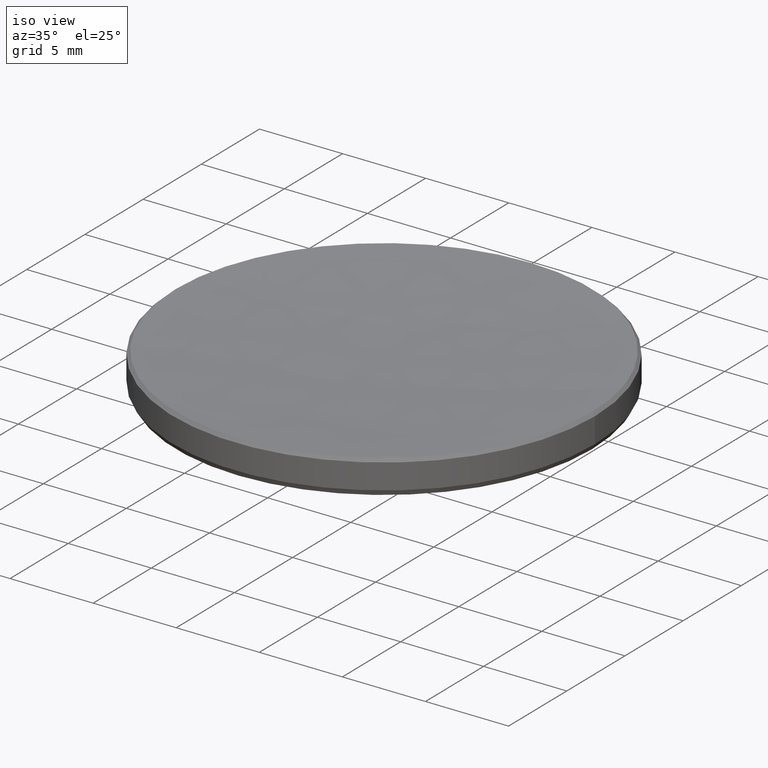
[diagram: clean part render]
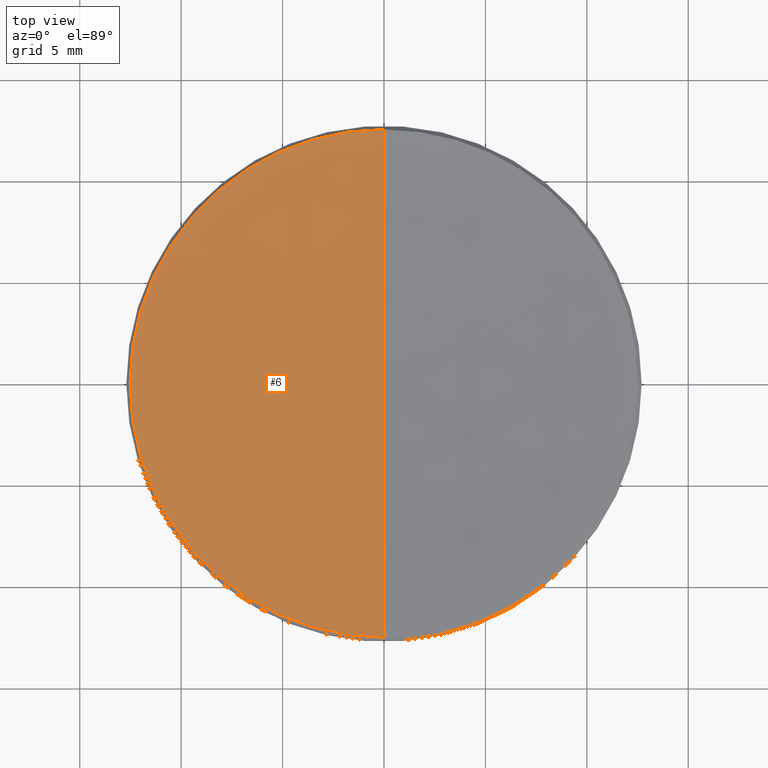
[diagram: tour spotlight — one face highlighted and labeled with its STEP entity id]
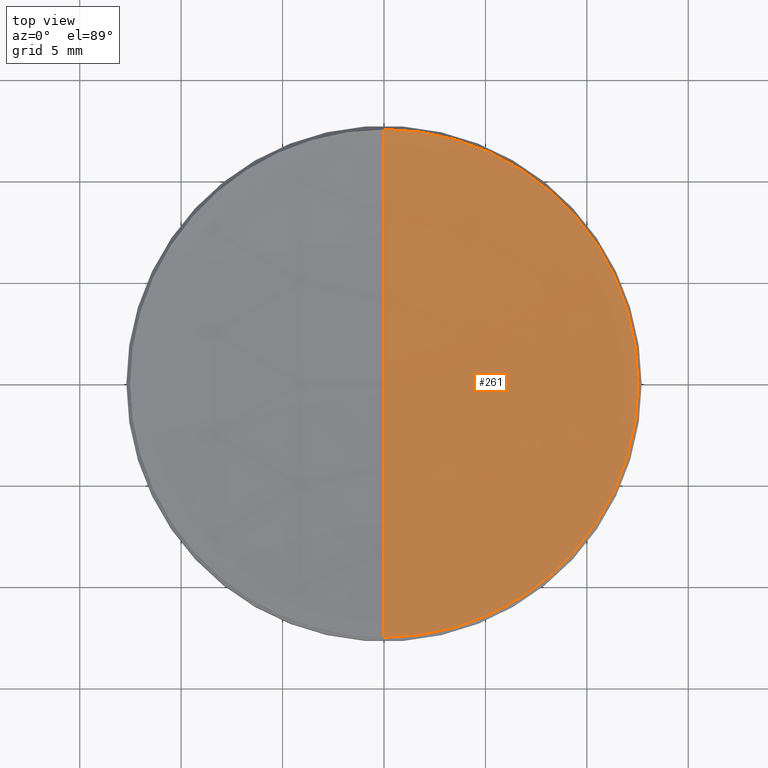
[diagram: tour spotlight — one face highlighted and labeled with its STEP entity id]
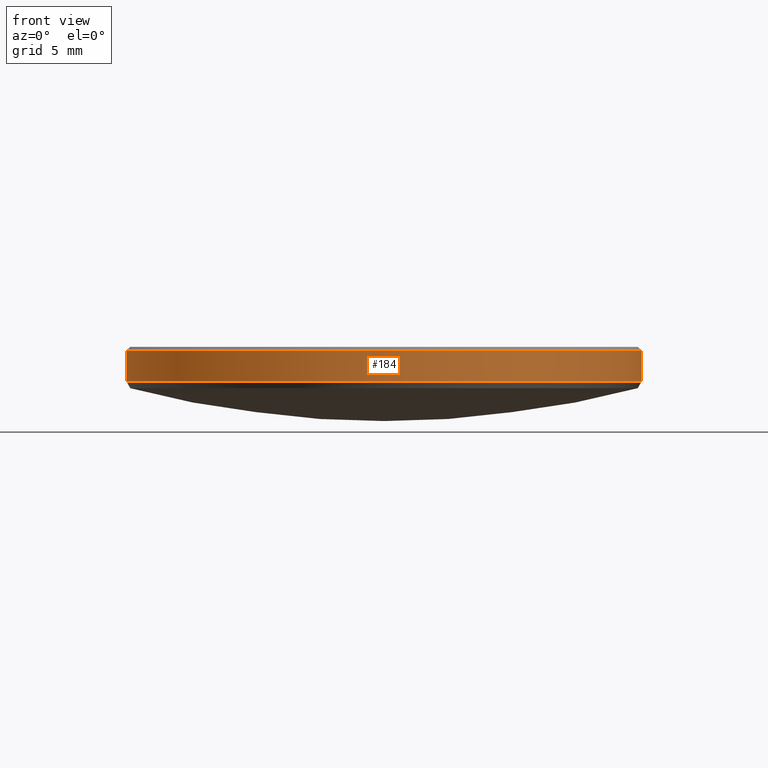
[diagram: tour spotlight — one face highlighted and labeled with its STEP entity id]
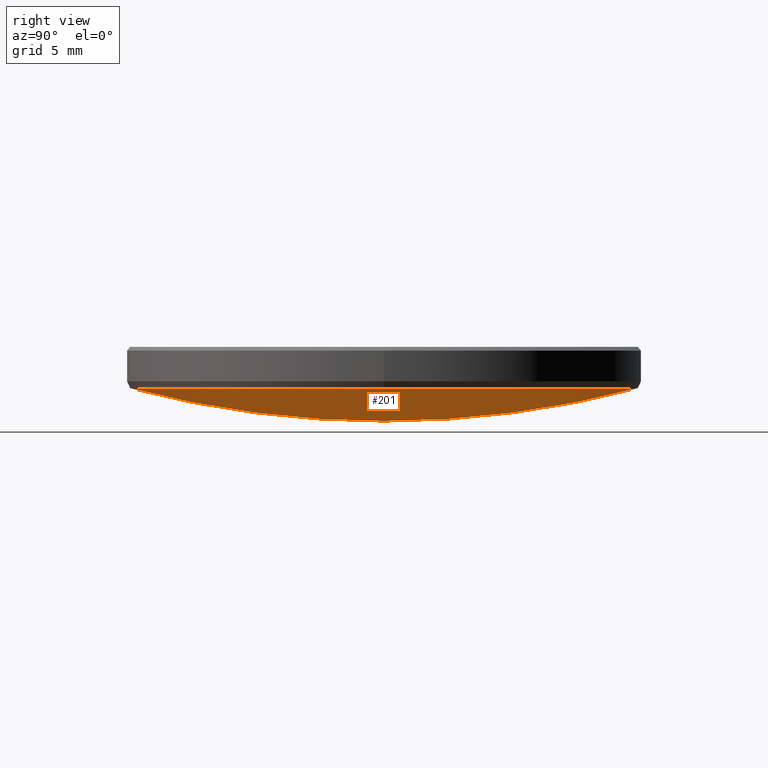
[diagram: tour spotlight — one face highlighted and labeled with its STEP entity id]
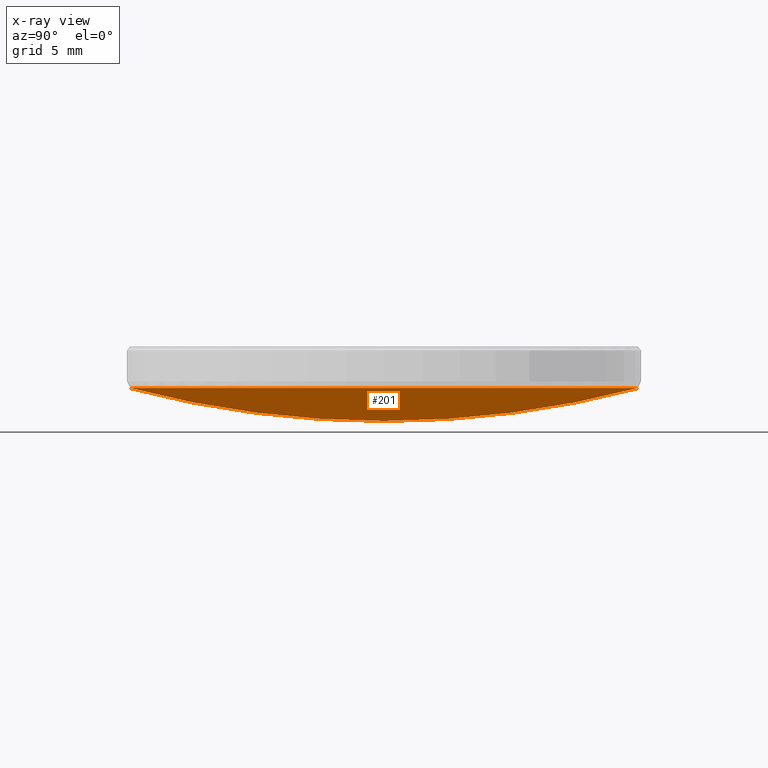
[diagram: x-ray of the same camera — body ghosted, this tour face saturated]
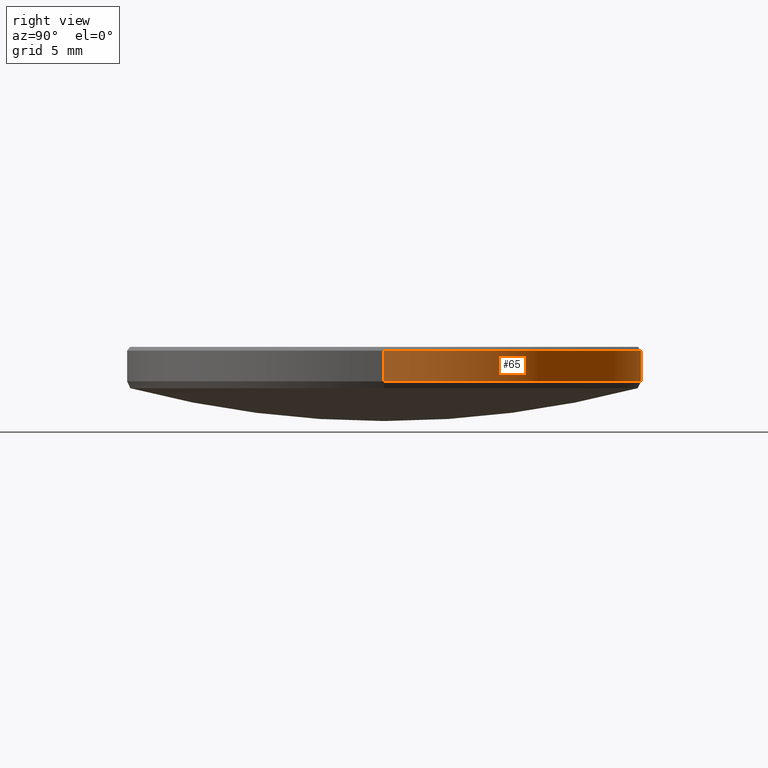
[diagram: tour spotlight — one face highlighted and labeled with its STEP entity id]
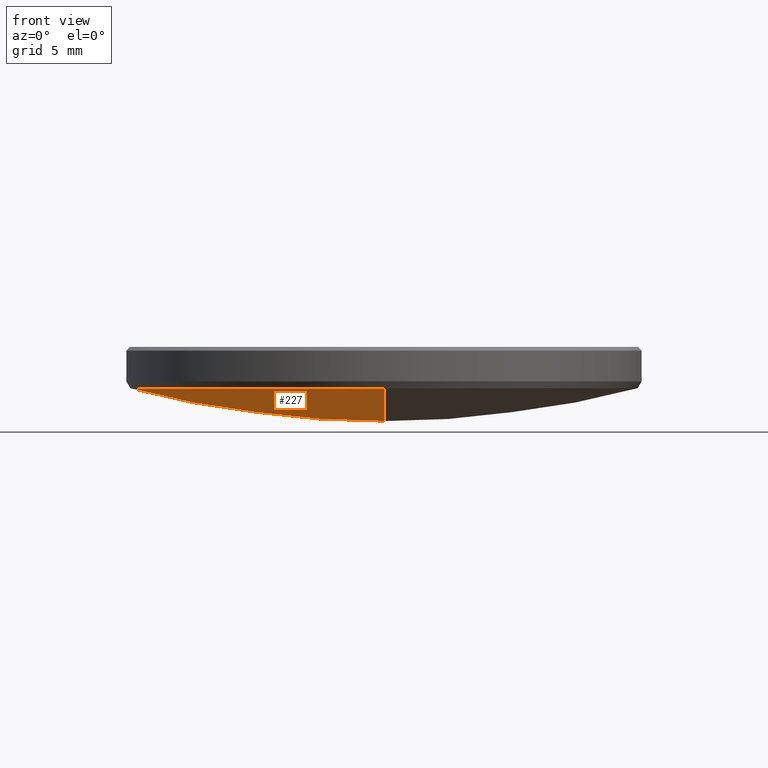
[diagram: tour spotlight — one face highlighted and labeled with its STEP entity id]
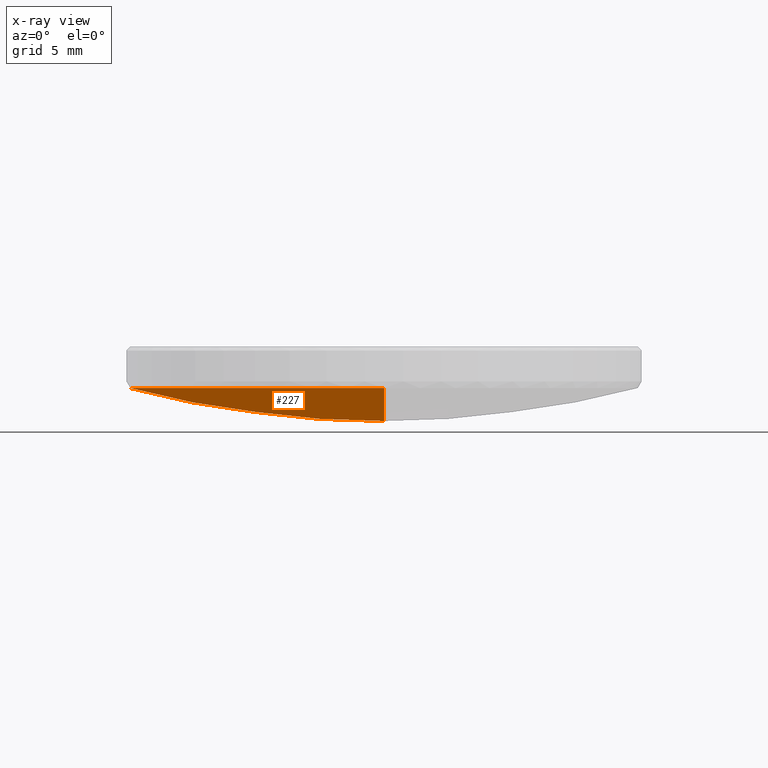
[diagram: x-ray of the same camera — body ghosted, this tour face saturated]
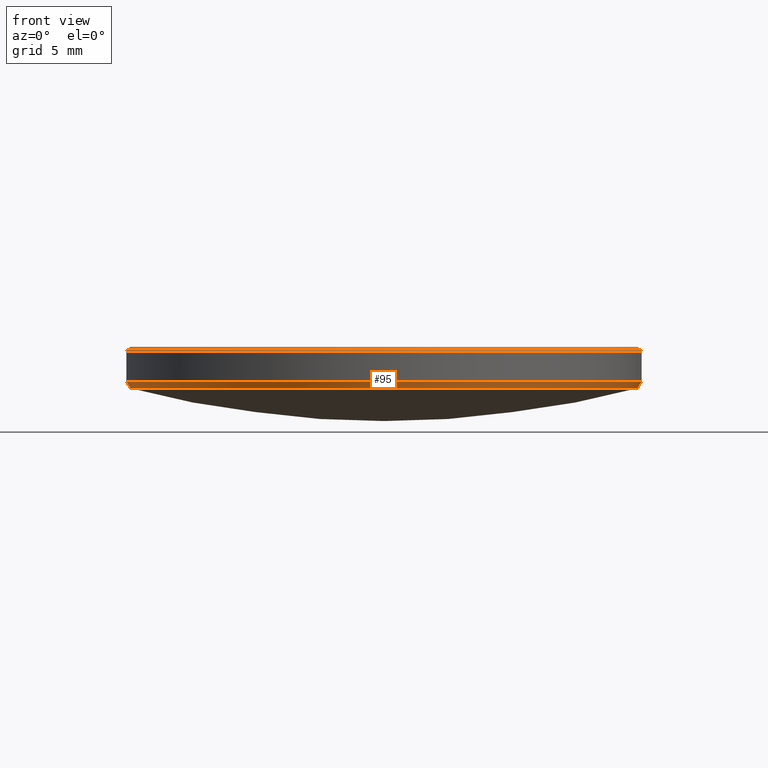
[diagram: tour spotlight — one face highlighted and labeled with its STEP entity id]
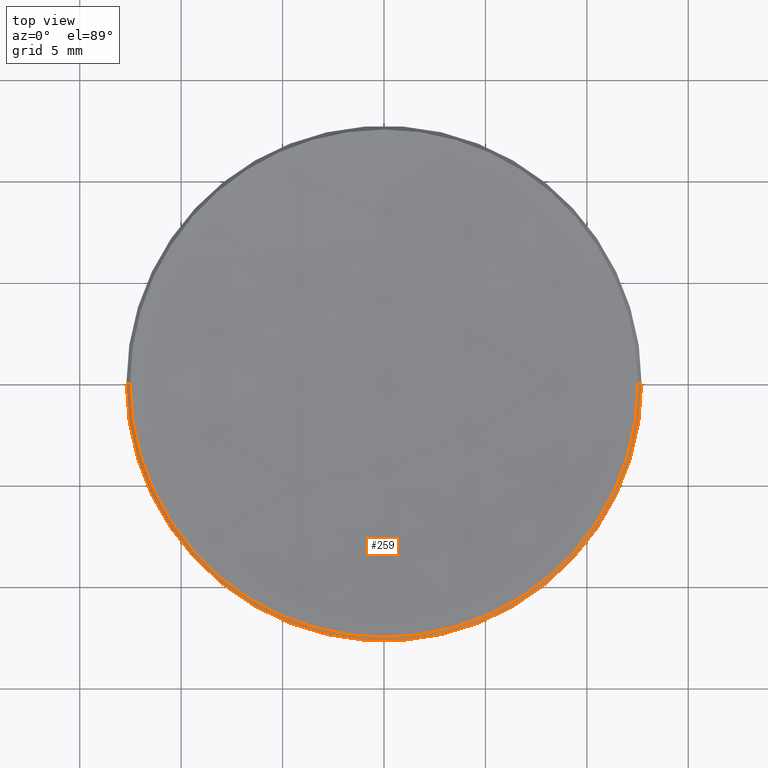
[diagram: tour spotlight — one face highlighted and labeled with its STEP entity id]
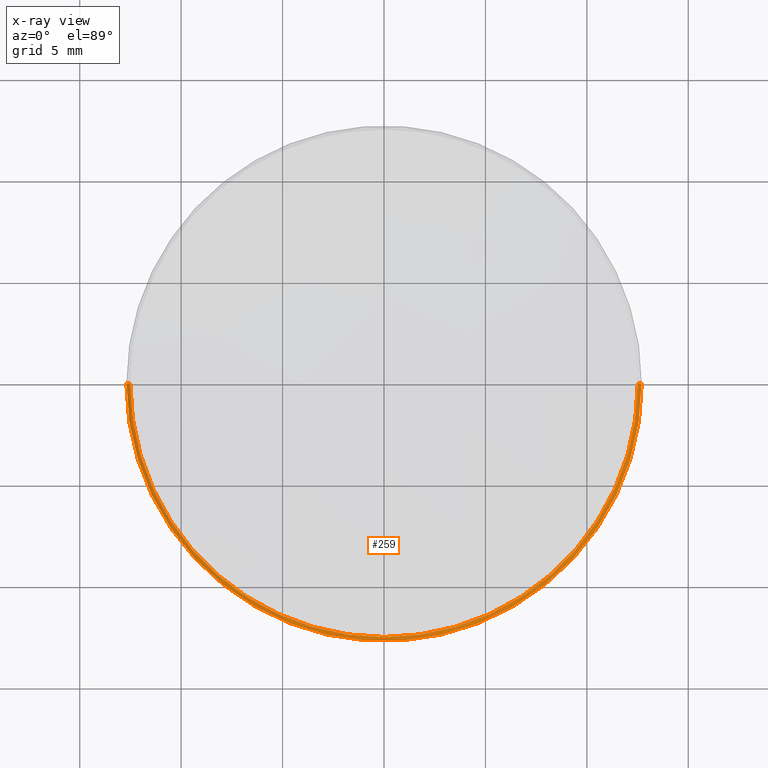
[diagram: x-ray of the same camera — body ghosted, this tour face saturated]
A machine part: a face-by-face anatomy tour. The part has 10 B-rep faces; the first image is the clean iso view, then the 8 largest visible faces are spotlighted one at a time (largest first), each with its STEP entity span.

Face 1 — top view, entity #6. In plain terms, the highlighted spherical surface has radius 131.56 mm.
Definition (entity closure, byte-faithful):
#6 = ADVANCED_FACE ( 'NONE', ( #218 ), #292, .F. ) ;
#13 = ORIENTED_EDGE ( 'NONE', *, *, #187, .T. ) ;
#15 = CIRCLE ( 'NONE', #296, 131.5600000000000023 ) ;
#16 = DIRECTION ( 'NONE',  ( -1.000000000000000000, 0.000000000000000000, 0.000000000000000000 ) ) ;
#29 = AXIS2_PLACEMENT_3D ( 'NONE', #53, #76, #202 ) ;
#32 = EDGE_CURVE ( 'NONE', #213, #191, #15, .T. ) ;
#42 = VERTEX_POINT ( 'NONE', #90 ) ;
#46 = ORIENTED_EDGE ( 'NONE', *, *, #143, .T. ) ;
#48 = CARTESIAN_POINT ( 'NONE',  ( -1.532959650738299683E-15, -12.51756548749897568, 5.982434512500911516 ) ) ;
#53 = CARTESIAN_POINT ( 'NONE',  ( 0.000000000000000000, 0.000000000000000000, 5.982434512500911516 ) ) ;
#56 = CIRCLE ( 'NONE', #330, 12.51756548749907694 ) ;
#69 = CARTESIAN_POINT ( 'NONE',  ( 0.000000000000000000, 0.000000000000000000, 136.9455749538715850 ) ) ;
#76 = DIRECTION ( 'NONE',  ( -0.000000000000000000, -0.000000000000000000, 1.000000000000000000 ) ) ;
#84 = CARTESIAN_POINT ( 'NONE',  ( -12.51756548749907694, 0.000000000000000000, 5.982434512500911516 ) ) ;
#90 = CARTESIAN_POINT ( 'NONE',  ( 0.000000000000000000, 12.51756548749897568, 5.982434512500911516 ) ) ;
#94 = EDGE_LOOP ( 'NONE', ( #289, #13, #46, #182 ) ) ;
#100 = DIRECTION ( 'NONE',  ( 1.000000000000000000, 0.000000000000000000, 0.000000000000000000 ) ) ;
#113 = DIRECTION ( 'NONE',  ( -1.000000000000000000, 1.224646799147353207E-16, 0.000000000000000000 ) ) ;
#143 = EDGE_CURVE ( 'NONE', #42, #319, #285, .T. ) ;
#146 = CARTESIAN_POINT ( 'NONE',  ( 0.000000000000000000, 8.055726644791288963E-15, 5.385574953871569370 ) ) ;
#165 = DIRECTION ( 'NONE',  ( 0.000000000000000000, 1.000000000000000000, 0.000000000000000000 ) ) ;
#168 = DIRECTION ( 'NONE',  ( -1.224646799147353207E-16, -1.000000000000000000, 0.000000000000000000 ) ) ;
#182 = ORIENTED_EDGE ( 'NONE', *, *, #243, .T. ) ;
#187 = EDGE_CURVE ( 'NONE', #213, #42, #232, .T. ) ;
#191 = VERTEX_POINT ( 'NONE', #48 ) ;
#202 = DIRECTION ( 'NONE',  ( 1.000000000000000000, 0.000000000000000000, 0.000000000000000000 ) ) ;
#204 = DIRECTION ( 'NONE',  ( -0.000000000000000000, -0.000000000000000000, 1.000000000000000000 ) ) ;
#213 = VERTEX_POINT ( 'NONE', #146 ) ;
#215 = AXIS2_PLACEMENT_3D ( 'NONE', #69, #16, #165 ) ;
#218 = FACE_OUTER_BOUND ( 'NONE', #94, .T. ) ;
#228 = CARTESIAN_POINT ( 'NONE',  ( 0.000000000000000000, 0.000000000000000000, 5.982434512500911516 ) ) ;
#232 = CIRCLE ( 'NONE', #313, 131.5600000000000023 ) ;
#243 = EDGE_CURVE ( 'NONE', #319, #191, #56, .T. ) ;
#253 = DIRECTION ( 'NONE',  ( 1.000000000000000000, 0.000000000000000000, 0.000000000000000000 ) ) ;
#277 = CARTESIAN_POINT ( 'NONE',  ( 0.000000000000000000, 0.000000000000000000, 136.9455749538715850 ) ) ;
#284 = DIRECTION ( 'NONE',  ( 0.000000000000000000, 0.000000000000000000, -1.000000000000000000 ) ) ;
#285 = CIRCLE ( 'NONE', #29, 12.51756548749907694 ) ;
#289 = ORIENTED_EDGE ( 'NONE', *, *, #32, .F. ) ;
#292 = SPHERICAL_SURFACE ( 'NONE', #215, 131.5600000000000023 ) ;
#296 = AXIS2_PLACEMENT_3D ( 'NONE', #322, #113, #168 ) ;
#313 = AXIS2_PLACEMENT_3D ( 'NONE', #277, #100, #284 ) ;
#319 = VERTEX_POINT ( 'NONE', #84 ) ;
#322 = CARTESIAN_POINT ( 'NONE',  ( 0.000000000000000000, 0.000000000000000000, 136.9455749538715850 ) ) ;
#330 = AXIS2_PLACEMENT_3D ( 'NONE', #228, #204, #253 ) ;

Face 2 — top view, entity #261. In plain terms, the highlighted spherical surface has radius 131.56 mm.
Definition (entity closure, byte-faithful):
#15 = CIRCLE ( 'NONE', #296, 131.5600000000000023 ) ;
#22 = AXIS2_PLACEMENT_3D ( 'NONE', #199, #144, #170 ) ;
#32 = EDGE_CURVE ( 'NONE', #213, #191, #15, .T. ) ;
#36 = ORIENTED_EDGE ( 'NONE', *, *, #112, .T. ) ;
#42 = VERTEX_POINT ( 'NONE', #90 ) ;
#45 = CIRCLE ( 'NONE', #134, 12.51756548749907694 ) ;
#48 = CARTESIAN_POINT ( 'NONE',  ( -1.532959650738299683E-15, -12.51756548749897568, 5.982434512500911516 ) ) ;
#52 = FACE_OUTER_BOUND ( 'NONE', #308, .T. ) ;
#71 = CIRCLE ( 'NONE', #22, 12.51756548749907694 ) ;
#80 = CARTESIAN_POINT ( 'NONE',  ( 0.000000000000000000, 0.000000000000000000, 5.982434512500911516 ) ) ;
#90 = CARTESIAN_POINT ( 'NONE',  ( 0.000000000000000000, 12.51756548749897568, 5.982434512500911516 ) ) ;
#100 = DIRECTION ( 'NONE',  ( 1.000000000000000000, 0.000000000000000000, 0.000000000000000000 ) ) ;
#101 = ORIENTED_EDGE ( 'NONE', *, *, #32, .T. ) ;
#104 = DIRECTION ( 'NONE',  ( 0.000000000000000000, 1.000000000000000000, 0.000000000000000000 ) ) ;
#111 = EDGE_CURVE ( 'NONE', #191, #214, #71, .T. ) ;
#112 = EDGE_CURVE ( 'NONE', #214, #42, #45, .T. ) ;
#113 = DIRECTION ( 'NONE',  ( -1.000000000000000000, 1.224646799147353207E-16, 0.000000000000000000 ) ) ;
#134 = AXIS2_PLACEMENT_3D ( 'NONE', #80, #328, #303 ) ;
#144 = DIRECTION ( 'NONE',  ( -0.000000000000000000, -0.000000000000000000, 1.000000000000000000 ) ) ;
#146 = CARTESIAN_POINT ( 'NONE',  ( 0.000000000000000000, 8.055726644791288963E-15, 5.385574953871569370 ) ) ;
#147 = SPHERICAL_SURFACE ( 'NONE', #288, 131.5600000000000023 ) ;
#168 = DIRECTION ( 'NONE',  ( -1.224646799147353207E-16, -1.000000000000000000, 0.000000000000000000 ) ) ;
#170 = DIRECTION ( 'NONE',  ( 1.000000000000000000, 0.000000000000000000, 0.000000000000000000 ) ) ;
#187 = EDGE_CURVE ( 'NONE', #213, #42, #232, .T. ) ;
#191 = VERTEX_POINT ( 'NONE', #48 ) ;
#199 = CARTESIAN_POINT ( 'NONE',  ( 0.000000000000000000, 0.000000000000000000, 5.982434512500911516 ) ) ;
#213 = VERTEX_POINT ( 'NONE', #146 ) ;
#214 = VERTEX_POINT ( 'NONE', #327 ) ;
#220 = ORIENTED_EDGE ( 'NONE', *, *, #187, .F. ) ;
#231 = DIRECTION ( 'NONE',  ( -1.000000000000000000, 0.000000000000000000, 0.000000000000000000 ) ) ;
#232 = CIRCLE ( 'NONE', #313, 131.5600000000000023 ) ;
#254 = CARTESIAN_POINT ( 'NONE',  ( 0.000000000000000000, 0.000000000000000000, 136.9455749538715850 ) ) ;
#261 = ADVANCED_FACE ( 'NONE', ( #52 ), #147, .F. ) ;
#277 = CARTESIAN_POINT ( 'NONE',  ( 0.000000000000000000, 0.000000000000000000, 136.9455749538715850 ) ) ;
#284 = DIRECTION ( 'NONE',  ( 0.000000000000000000, 0.000000000000000000, -1.000000000000000000 ) ) ;
#288 = AXIS2_PLACEMENT_3D ( 'NONE', #254, #231, #104 ) ;
#296 = AXIS2_PLACEMENT_3D ( 'NONE', #322, #113, #168 ) ;
#303 = DIRECTION ( 'NONE',  ( 1.000000000000000000, 0.000000000000000000, 0.000000000000000000 ) ) ;
#308 = EDGE_LOOP ( 'NONE', ( #220, #101, #310, #36 ) ) ;
#310 = ORIENTED_EDGE ( 'NONE', *, *, #111, .T. ) ;
#313 = AXIS2_PLACEMENT_3D ( 'NONE', #277, #100, #284 ) ;
#322 = CARTESIAN_POINT ( 'NONE',  ( 0.000000000000000000, 0.000000000000000000, 136.9455749538715850 ) ) ;
#327 = CARTESIAN_POINT ( 'NONE',  ( 12.51756548749907694, 1.544130542827725172E-15, 5.982434512500911516 ) ) ;
#328 = DIRECTION ( 'NONE',  ( -0.000000000000000000, -0.000000000000000000, 1.000000000000000000 ) ) ;

Face 3 — front view, entity #184. In plain terms, the highlighted cylindrical surface (partial cylindrical patch) has radius 12.7 mm, axis along (-0, -0, -1).
Definition (entity closure, byte-faithful):
#9 = VERTEX_POINT ( 'NONE', #290 ) ;
#14 = ORIENTED_EDGE ( 'NONE', *, *, #131, .T. ) ;
#24 = DIRECTION ( 'NONE',  ( -0.000000000000000000, -0.000000000000000000, -1.000000000000000000 ) ) ;
#27 = DIRECTION ( 'NONE',  ( -0.000000000000000000, -0.000000000000000000, -1.000000000000000000 ) ) ;
#39 = CARTESIAN_POINT ( 'NONE',  ( 12.69999999999999929, 1.555301434917138433E-15, 4.282866881517001900 ) ) ;
#64 = VERTEX_POINT ( 'NONE', #39 ) ;
#74 = EDGE_CURVE ( 'NONE', #198, #64, #216, .T. ) ;
#78 = CYLINDRICAL_SURFACE ( 'NONE', #169, 12.69999999999999929 ) ;
#82 = ORIENTED_EDGE ( 'NONE', *, *, #245, .T. ) ;
#91 = VERTEX_POINT ( 'NONE', #329 ) ;
#99 = DIRECTION ( 'NONE',  ( 1.000000000000000000, 0.000000000000000000, 0.000000000000000000 ) ) ;
#103 = DIRECTION ( 'NONE',  ( -0.000000000000000000, -0.000000000000000000, 1.000000000000000000 ) ) ;
#121 = LINE ( 'NONE', #233, #179 ) ;
#122 = CARTESIAN_POINT ( 'NONE',  ( 0.000000000000000000, 0.000000000000000000, 4.282866881517001900 ) ) ;
#127 = CARTESIAN_POINT ( 'NONE',  ( -12.69999999999999929, 0.000000000000000000, 4.282866881517001900 ) ) ;
#131 = EDGE_CURVE ( 'NONE', #91, #9, #263, .T. ) ;
#169 = AXIS2_PLACEMENT_3D ( 'NONE', #225, #27, #299 ) ;
#177 = LINE ( 'NONE', #283, #211 ) ;
#179 = VECTOR ( 'NONE', #24, 1000.000000000000000 ) ;
#184 = ADVANCED_FACE ( 'NONE', ( #324 ), #78, .T. ) ;
#186 = ORIENTED_EDGE ( 'NONE', *, *, #271, .F. ) ;
#196 = CARTESIAN_POINT ( 'NONE',  ( 0.000000000000000000, 0.000000000000000000, 5.799999999999999822 ) ) ;
#198 = VERTEX_POINT ( 'NONE', #127 ) ;
#211 = VECTOR ( 'NONE', #331, 1000.000000000000000 ) ;
#216 = CIRCLE ( 'NONE', #262, 12.69999999999999929 ) ;
#225 = CARTESIAN_POINT ( 'NONE',  ( 0.000000000000000000, 0.000000000000000000, 10.00000000000000000 ) ) ;
#233 = CARTESIAN_POINT ( 'NONE',  ( -12.69999999999999929, 0.000000000000000000, 10.00000000000000000 ) ) ;
#237 = EDGE_LOOP ( 'NONE', ( #186, #14, #82, #241 ) ) ;
#241 = ORIENTED_EDGE ( 'NONE', *, *, #74, .T. ) ;
#245 = EDGE_CURVE ( 'NONE', #9, #198, #121, .T. ) ;
#257 = AXIS2_PLACEMENT_3D ( 'NONE', #196, #280, #99 ) ;
#262 = AXIS2_PLACEMENT_3D ( 'NONE', #122, #103, #276 ) ;
#263 = CIRCLE ( 'NONE', #257, 12.69999999999999929 ) ;
#271 = EDGE_CURVE ( 'NONE', #91, #64, #177, .T. ) ;
#276 = DIRECTION ( 'NONE',  ( -1.000000000000000000, 0.000000000000000000, 0.000000000000000000 ) ) ;
#280 = DIRECTION ( 'NONE',  ( 0.000000000000000000, 0.000000000000000000, -1.000000000000000000 ) ) ;
#283 = CARTESIAN_POINT ( 'NONE',  ( 12.69999999999999929, 1.555301434917138433E-15, 10.00000000000000000 ) ) ;
#290 = CARTESIAN_POINT ( 'NONE',  ( -12.69999999999999929, 0.000000000000000000, 5.799999999999999822 ) ) ;
#299 = DIRECTION ( 'NONE',  ( -1.000000000000000000, 0.000000000000000000, 0.000000000000000000 ) ) ;
#324 = FACE_OUTER_BOUND ( 'NONE', #237, .T. ) ;
#329 = CARTESIAN_POINT ( 'NONE',  ( 12.69999999999999929, 1.555301434917138433E-15, 5.799999999999999822 ) ) ;
#331 = DIRECTION ( 'NONE',  ( -0.000000000000000000, -0.000000000000000000, -1.000000000000000000 ) ) ;

Face 4 — right view, entity #201. An x-ray twin of the same camera follows (body ghosted, this face saturated) — the face is partly hidden behind the body. In plain terms, the highlighted spherical surface has radius 49.06 mm.
Definition (entity closure, byte-faithful):
#1 = EDGE_CURVE ( 'NONE', #115, #258, #35, .T. ) ;
#19 = DIRECTION ( 'NONE',  ( 0.000000000000000000, 1.000000000000000000, 0.000000000000000000 ) ) ;
#35 = CIRCLE ( 'NONE', #133, 49.05999999999999517 ) ;
#40 = CARTESIAN_POINT ( 'NONE',  ( 0.000000000000000000, 0.000000000000000000, 51.38769460524535049 ) ) ;
#50 = SPHERICAL_SURFACE ( 'NONE', #207, 49.05999999999999517 ) ;
#54 = CARTESIAN_POINT ( 'NONE',  ( 0.000000000000000000, 0.000000000000000000, 3.948723936848863580 ) ) ;
#55 = DIRECTION ( 'NONE',  ( -1.000000000000000000, 0.000000000000000000, 0.000000000000000000 ) ) ;
#61 = EDGE_CURVE ( 'NONE', #264, #67, #188, .T. ) ;
#63 = ORIENTED_EDGE ( 'NONE', *, *, #286, .T. ) ;
#67 = VERTEX_POINT ( 'NONE', #221 ) ;
#72 = AXIS2_PLACEMENT_3D ( 'NONE', #54, #148, #256 ) ;
#115 = VERTEX_POINT ( 'NONE', #300 ) ;
#126 = CARTESIAN_POINT ( 'NONE',  ( -1.531678544107628650E-15, -12.50710445798775083, 3.948723936848860028 ) ) ;
#129 = EDGE_CURVE ( 'NONE', #115, #264, #325, .T. ) ;
#133 = AXIS2_PLACEMENT_3D ( 'NONE', #40, #246, #137 ) ;
#137 = DIRECTION ( 'NONE',  ( -1.224646799147353207E-16, -1.000000000000000000, 0.000000000000000000 ) ) ;
#139 = DIRECTION ( 'NONE',  ( 1.000000000000000000, 0.000000000000000000, 0.000000000000000000 ) ) ;
#148 = DIRECTION ( 'NONE',  ( 0.000000000000000000, 0.000000000000000000, -1.000000000000000000 ) ) ;
#167 = AXIS2_PLACEMENT_3D ( 'NONE', #294, #270, #139 ) ;
#173 = FACE_OUTER_BOUND ( 'NONE', #235, .T. ) ;
#174 = DIRECTION ( 'NONE',  ( 0.000000000000000000, 0.000000000000000000, -1.000000000000000000 ) ) ;
#188 = CIRCLE ( 'NONE', #167, 12.50710445798774728 ) ;
#193 = ORIENTED_EDGE ( 'NONE', *, *, #1, .F. ) ;
#197 = CARTESIAN_POINT ( 'NONE',  ( 0.000000000000000000, 0.000000000000000000, 51.38769460524535049 ) ) ;
#201 = ADVANCED_FACE ( 'NONE', ( #173 ), #50, .T. ) ;
#203 = AXIS2_PLACEMENT_3D ( 'NONE', #226, #224, #174 ) ;
#207 = AXIS2_PLACEMENT_3D ( 'NONE', #197, #55, #19 ) ;
#208 = ORIENTED_EDGE ( 'NONE', *, *, #129, .T. ) ;
#221 = CARTESIAN_POINT ( 'NONE',  ( 12.50710445798774728, 0.000000000000000000, 3.948723936848863580 ) ) ;
#224 = DIRECTION ( 'NONE',  ( 1.000000000000000000, -0.000000000000000000, 0.000000000000000000 ) ) ;
#226 = CARTESIAN_POINT ( 'NONE',  ( 0.000000000000000000, 0.000000000000000000, 51.38769460524535049 ) ) ;
#235 = EDGE_LOOP ( 'NONE', ( #193, #208, #323, #63 ) ) ;
#246 = DIRECTION ( 'NONE',  ( -1.000000000000000000, 1.224646799147353207E-16, 0.000000000000000000 ) ) ;
#256 = DIRECTION ( 'NONE',  ( 1.000000000000000000, 0.000000000000000000, 0.000000000000000000 ) ) ;
#258 = VERTEX_POINT ( 'NONE', #126 ) ;
#264 = VERTEX_POINT ( 'NONE', #307 ) ;
#270 = DIRECTION ( 'NONE',  ( 0.000000000000000000, 0.000000000000000000, -1.000000000000000000 ) ) ;
#286 = EDGE_CURVE ( 'NONE', #67, #258, #311, .T. ) ;
#294 = CARTESIAN_POINT ( 'NONE',  ( 0.000000000000000000, 0.000000000000000000, 3.948723936848863580 ) ) ;
#300 = CARTESIAN_POINT ( 'NONE',  ( 0.000000000000000000, 3.004058598308457002E-15, 2.327694605245358872 ) ) ;
#307 = CARTESIAN_POINT ( 'NONE',  ( 0.000000000000000000, 12.50710445798775083, 3.948723936848860028 ) ) ;
#311 = CIRCLE ( 'NONE', #72, 12.50710445798774728 ) ;
#323 = ORIENTED_EDGE ( 'NONE', *, *, #61, .T. ) ;
#325 = CIRCLE ( 'NONE', #203, 49.05999999999999517 ) ;

Face 5 — right view, entity #65. In plain terms, the highlighted cylindrical surface (partial cylindrical patch) has radius 12.7 mm, axis along (-0, -0, -1).
Definition (entity closure, byte-faithful):
#7 = ORIENTED_EDGE ( 'NONE', *, *, #234, .T. ) ;
#9 = VERTEX_POINT ( 'NONE', #290 ) ;
#17 = CARTESIAN_POINT ( 'NONE',  ( 0.000000000000000000, 0.000000000000000000, 10.00000000000000000 ) ) ;
#21 = DIRECTION ( 'NONE',  ( 1.000000000000000000, 0.000000000000000000, 0.000000000000000000 ) ) ;
#24 = DIRECTION ( 'NONE',  ( -0.000000000000000000, -0.000000000000000000, -1.000000000000000000 ) ) ;
#28 = CARTESIAN_POINT ( 'NONE',  ( 0.000000000000000000, 0.000000000000000000, 4.282866881517001900 ) ) ;
#39 = CARTESIAN_POINT ( 'NONE',  ( 12.69999999999999929, 1.555301434917138433E-15, 4.282866881517001900 ) ) ;
#62 = DIRECTION ( 'NONE',  ( -0.000000000000000000, -0.000000000000000000, -1.000000000000000000 ) ) ;
#64 = VERTEX_POINT ( 'NONE', #39 ) ;
#65 = ADVANCED_FACE ( 'NONE', ( #244 ), #185, .T. ) ;
#66 = ORIENTED_EDGE ( 'NONE', *, *, #245, .F. ) ;
#85 = AXIS2_PLACEMENT_3D ( 'NONE', #128, #142, #21 ) ;
#91 = VERTEX_POINT ( 'NONE', #329 ) ;
#97 = AXIS2_PLACEMENT_3D ( 'NONE', #28, #106, #206 ) ;
#106 = DIRECTION ( 'NONE',  ( -0.000000000000000000, -0.000000000000000000, 1.000000000000000000 ) ) ;
#118 = DIRECTION ( 'NONE',  ( -1.000000000000000000, 0.000000000000000000, 0.000000000000000000 ) ) ;
#121 = LINE ( 'NONE', #233, #179 ) ;
#123 = CIRCLE ( 'NONE', #85, 12.69999999999999929 ) ;
#127 = CARTESIAN_POINT ( 'NONE',  ( -12.69999999999999929, 0.000000000000000000, 4.282866881517001900 ) ) ;
#128 = CARTESIAN_POINT ( 'NONE',  ( 0.000000000000000000, 0.000000000000000000, 5.799999999999999822 ) ) ;
#140 = EDGE_LOOP ( 'NONE', ( #7, #157, #238, #66 ) ) ;
#142 = DIRECTION ( 'NONE',  ( 0.000000000000000000, 0.000000000000000000, -1.000000000000000000 ) ) ;
#154 = AXIS2_PLACEMENT_3D ( 'NONE', #17, #62, #118 ) ;
#157 = ORIENTED_EDGE ( 'NONE', *, *, #271, .T. ) ;
#177 = LINE ( 'NONE', #283, #211 ) ;
#179 = VECTOR ( 'NONE', #24, 1000.000000000000000 ) ;
#185 = CYLINDRICAL_SURFACE ( 'NONE', #154, 12.69999999999999929 ) ;
#198 = VERTEX_POINT ( 'NONE', #127 ) ;
#206 = DIRECTION ( 'NONE',  ( -1.000000000000000000, 0.000000000000000000, 0.000000000000000000 ) ) ;
#211 = VECTOR ( 'NONE', #331, 1000.000000000000000 ) ;
#233 = CARTESIAN_POINT ( 'NONE',  ( -12.69999999999999929, 0.000000000000000000, 10.00000000000000000 ) ) ;
#234 = EDGE_CURVE ( 'NONE', #9, #91, #123, .T. ) ;
#238 = ORIENTED_EDGE ( 'NONE', *, *, #301, .T. ) ;
#244 = FACE_OUTER_BOUND ( 'NONE', #140, .T. ) ;
#245 = EDGE_CURVE ( 'NONE', #9, #198, #121, .T. ) ;
#271 = EDGE_CURVE ( 'NONE', #91, #64, #177, .T. ) ;
#283 = CARTESIAN_POINT ( 'NONE',  ( 12.69999999999999929, 1.555301434917138433E-15, 10.00000000000000000 ) ) ;
#290 = CARTESIAN_POINT ( 'NONE',  ( -12.69999999999999929, 0.000000000000000000, 5.799999999999999822 ) ) ;
#301 = EDGE_CURVE ( 'NONE', #64, #198, #305, .T. ) ;
#305 = CIRCLE ( 'NONE', #97, 12.69999999999999929 ) ;
#329 = CARTESIAN_POINT ( 'NONE',  ( 12.69999999999999929, 1.555301434917138433E-15, 5.799999999999999822 ) ) ;
#331 = DIRECTION ( 'NONE',  ( -0.000000000000000000, -0.000000000000000000, -1.000000000000000000 ) ) ;

Face 6 — front view, entity #227. An x-ray twin of the same camera follows (body ghosted, this face saturated) — the face is partly hidden behind the body. In plain terms, the highlighted spherical surface has radius 49.06 mm.
Definition (entity closure, byte-faithful):
#1 = EDGE_CURVE ( 'NONE', #115, #258, #35, .T. ) ;
#8 = AXIS2_PLACEMENT_3D ( 'NONE', #248, #172, #20 ) ;
#20 = DIRECTION ( 'NONE',  ( 1.000000000000000000, 0.000000000000000000, 0.000000000000000000 ) ) ;
#35 = CIRCLE ( 'NONE', #133, 49.05999999999999517 ) ;
#40 = CARTESIAN_POINT ( 'NONE',  ( 0.000000000000000000, 0.000000000000000000, 51.38769460524535049 ) ) ;
#75 = DIRECTION ( 'NONE',  ( 1.000000000000000000, 0.000000000000000000, 0.000000000000000000 ) ) ;
#79 = AXIS2_PLACEMENT_3D ( 'NONE', #81, #222, #175 ) ;
#81 = CARTESIAN_POINT ( 'NONE',  ( 0.000000000000000000, 0.000000000000000000, 51.38769460524535049 ) ) ;
#89 = ORIENTED_EDGE ( 'NONE', *, *, #255, .T. ) ;
#92 = ORIENTED_EDGE ( 'NONE', *, *, #1, .T. ) ;
#105 = CIRCLE ( 'NONE', #279, 12.50710445798774728 ) ;
#115 = VERTEX_POINT ( 'NONE', #300 ) ;
#117 = CIRCLE ( 'NONE', #8, 12.50710445798774728 ) ;
#126 = CARTESIAN_POINT ( 'NONE',  ( -1.531678544107628650E-15, -12.50710445798775083, 3.948723936848860028 ) ) ;
#129 = EDGE_CURVE ( 'NONE', #115, #264, #325, .T. ) ;
#133 = AXIS2_PLACEMENT_3D ( 'NONE', #40, #246, #137 ) ;
#135 = ORIENTED_EDGE ( 'NONE', *, *, #129, .F. ) ;
#137 = DIRECTION ( 'NONE',  ( -1.224646799147353207E-16, -1.000000000000000000, 0.000000000000000000 ) ) ;
#138 = ORIENTED_EDGE ( 'NONE', *, *, #162, .T. ) ;
#162 = EDGE_CURVE ( 'NONE', #258, #183, #117, .T. ) ;
#172 = DIRECTION ( 'NONE',  ( 0.000000000000000000, 0.000000000000000000, -1.000000000000000000 ) ) ;
#174 = DIRECTION ( 'NONE',  ( 0.000000000000000000, 0.000000000000000000, -1.000000000000000000 ) ) ;
#175 = DIRECTION ( 'NONE',  ( 0.000000000000000000, 1.000000000000000000, 0.000000000000000000 ) ) ;
#178 = CARTESIAN_POINT ( 'NONE',  ( 0.000000000000000000, 0.000000000000000000, 3.948723936848863580 ) ) ;
#183 = VERTEX_POINT ( 'NONE', #249 ) ;
#195 = DIRECTION ( 'NONE',  ( 0.000000000000000000, 0.000000000000000000, -1.000000000000000000 ) ) ;
#200 = FACE_OUTER_BOUND ( 'NONE', #315, .T. ) ;
#203 = AXIS2_PLACEMENT_3D ( 'NONE', #226, #224, #174 ) ;
#222 = DIRECTION ( 'NONE',  ( -1.000000000000000000, 0.000000000000000000, 0.000000000000000000 ) ) ;
#224 = DIRECTION ( 'NONE',  ( 1.000000000000000000, -0.000000000000000000, 0.000000000000000000 ) ) ;
#226 = CARTESIAN_POINT ( 'NONE',  ( 0.000000000000000000, 0.000000000000000000, 51.38769460524535049 ) ) ;
#227 = ADVANCED_FACE ( 'NONE', ( #200 ), #309, .T. ) ;
#246 = DIRECTION ( 'NONE',  ( -1.000000000000000000, 1.224646799147353207E-16, 0.000000000000000000 ) ) ;
#248 = CARTESIAN_POINT ( 'NONE',  ( 0.000000000000000000, 0.000000000000000000, 3.948723936848863580 ) ) ;
#249 = CARTESIAN_POINT ( 'NONE',  ( -12.50710445798774728, 1.543489989512383738E-15, 3.948723936848863580 ) ) ;
#255 = EDGE_CURVE ( 'NONE', #183, #264, #105, .T. ) ;
#258 = VERTEX_POINT ( 'NONE', #126 ) ;
#264 = VERTEX_POINT ( 'NONE', #307 ) ;
#279 = AXIS2_PLACEMENT_3D ( 'NONE', #178, #195, #75 ) ;
#300 = CARTESIAN_POINT ( 'NONE',  ( 0.000000000000000000, 3.004058598308457002E-15, 2.327694605245358872 ) ) ;
#307 = CARTESIAN_POINT ( 'NONE',  ( 0.000000000000000000, 12.50710445798775083, 3.948723936848860028 ) ) ;
#309 = SPHERICAL_SURFACE ( 'NONE', #79, 49.05999999999999517 ) ;
#315 = EDGE_LOOP ( 'NONE', ( #135, #92, #138, #89 ) ) ;
#325 = CIRCLE ( 'NONE', #203, 49.05999999999999517 ) ;

Face 7 — front view, entity #95. In plain terms, the highlighted conical surface has half-angle 29.997 deg.
Definition (entity closure, byte-faithful):
#8 = AXIS2_PLACEMENT_3D ( 'NONE', #248, #172, #20 ) ;
#12 = ORIENTED_EDGE ( 'NONE', *, *, #162, .F. ) ;
#20 = DIRECTION ( 'NONE',  ( 1.000000000000000000, 0.000000000000000000, 0.000000000000000000 ) ) ;
#37 = VECTOR ( 'NONE', #141, 1000.000000000000000 ) ;
#38 = EDGE_LOOP ( 'NONE', ( #108, #12, #60, #161, #58 ) ) ;
#39 = CARTESIAN_POINT ( 'NONE',  ( 12.69999999999999929, 1.555301434917138433E-15, 4.282866881517001900 ) ) ;
#49 = FACE_OUTER_BOUND ( 'NONE', #38, .T. ) ;
#54 = CARTESIAN_POINT ( 'NONE',  ( 0.000000000000000000, 0.000000000000000000, 3.948723936848863580 ) ) ;
#58 = ORIENTED_EDGE ( 'NONE', *, *, #74, .F. ) ;
#60 = ORIENTED_EDGE ( 'NONE', *, *, #286, .F. ) ;
#64 = VERTEX_POINT ( 'NONE', #39 ) ;
#67 = VERTEX_POINT ( 'NONE', #221 ) ;
#72 = AXIS2_PLACEMENT_3D ( 'NONE', #54, #148, #256 ) ;
#73 = DIRECTION ( 'NONE',  ( -0.000000000000000000, -0.000000000000000000, 1.000000000000000000 ) ) ;
#74 = EDGE_CURVE ( 'NONE', #198, #64, #216, .T. ) ;
#77 = CARTESIAN_POINT ( 'NONE',  ( 0.000000000000000000, 0.000000000000000000, 4.282866881517001900 ) ) ;
#95 = ADVANCED_FACE ( 'NONE', ( #49 ), #223, .T. ) ;
#103 = DIRECTION ( 'NONE',  ( -0.000000000000000000, -0.000000000000000000, 1.000000000000000000 ) ) ;
#108 = ORIENTED_EDGE ( 'NONE', *, *, #156, .F. ) ;
#117 = CIRCLE ( 'NONE', #8, 12.50710445798774728 ) ;
#122 = CARTESIAN_POINT ( 'NONE',  ( 0.000000000000000000, 0.000000000000000000, 4.282866881517001900 ) ) ;
#124 = DIRECTION ( 'NONE',  ( 0.4999572784161532835, 0.000000000000000000, 0.8660500676974242085 ) ) ;
#126 = CARTESIAN_POINT ( 'NONE',  ( -1.531678544107628650E-15, -12.50710445798775083, 3.948723936848860028 ) ) ;
#127 = CARTESIAN_POINT ( 'NONE',  ( -12.69999999999999929, 0.000000000000000000, 4.282866881517001900 ) ) ;
#141 = DIRECTION ( 'NONE',  ( -0.4999572784161532835, 6.122710807227642125E-17, 0.8660500676974242085 ) ) ;
#148 = DIRECTION ( 'NONE',  ( 0.000000000000000000, 0.000000000000000000, -1.000000000000000000 ) ) ;
#150 = AXIS2_PLACEMENT_3D ( 'NONE', #77, #73, #326 ) ;
#156 = EDGE_CURVE ( 'NONE', #183, #198, #298, .T. ) ;
#161 = ORIENTED_EDGE ( 'NONE', *, *, #210, .T. ) ;
#162 = EDGE_CURVE ( 'NONE', #258, #183, #117, .T. ) ;
#172 = DIRECTION ( 'NONE',  ( 0.000000000000000000, 0.000000000000000000, -1.000000000000000000 ) ) ;
#183 = VERTEX_POINT ( 'NONE', #249 ) ;
#189 = VECTOR ( 'NONE', #124, 1000.000000000000000 ) ;
#198 = VERTEX_POINT ( 'NONE', #127 ) ;
#210 = EDGE_CURVE ( 'NONE', #67, #64, #247, .T. ) ;
#216 = CIRCLE ( 'NONE', #262, 12.69999999999999929 ) ;
#221 = CARTESIAN_POINT ( 'NONE',  ( 12.50710445798774728, 0.000000000000000000, 3.948723936848863580 ) ) ;
#223 = CONICAL_SURFACE ( 'NONE', #150, 12.69999999999999929, 0.5235494456648849271 ) ;
#247 = LINE ( 'NONE', #275, #189 ) ;
#248 = CARTESIAN_POINT ( 'NONE',  ( 0.000000000000000000, 0.000000000000000000, 3.948723936848863580 ) ) ;
#249 = CARTESIAN_POINT ( 'NONE',  ( -12.50710445798774728, 1.543489989512383738E-15, 3.948723936848863580 ) ) ;
#256 = DIRECTION ( 'NONE',  ( 1.000000000000000000, 0.000000000000000000, 0.000000000000000000 ) ) ;
#258 = VERTEX_POINT ( 'NONE', #126 ) ;
#262 = AXIS2_PLACEMENT_3D ( 'NONE', #122, #103, #276 ) ;
#274 = CARTESIAN_POINT ( 'NONE',  ( -12.69999999999999929, 1.555301434917138433E-15, 4.282866881517001900 ) ) ;
#275 = CARTESIAN_POINT ( 'NONE',  ( 12.69999999999999929, 0.000000000000000000, 4.282866881517001900 ) ) ;
#276 = DIRECTION ( 'NONE',  ( -1.000000000000000000, 0.000000000000000000, 0.000000000000000000 ) ) ;
#286 = EDGE_CURVE ( 'NONE', #67, #258, #311, .T. ) ;
#298 = LINE ( 'NONE', #274, #37 ) ;
#311 = CIRCLE ( 'NONE', #72, 12.50710445798774728 ) ;
#326 = DIRECTION ( 'NONE',  ( 1.000000000000000000, 0.000000000000000000, 0.000000000000000000 ) ) ;

Face 8 — top view, entity #259. An x-ray twin of the same camera follows (body ghosted, this face saturated) — the face is partly hidden behind the body. In plain terms, the highlighted conical surface has half-angle 45 deg.
Definition (entity closure, byte-faithful):
#3 = VECTOR ( 'NONE', #83, 1000.000000000000000 ) ;
#5 = EDGE_CURVE ( 'NONE', #319, #9, #18, .T. ) ;
#9 = VERTEX_POINT ( 'NONE', #290 ) ;
#18 = LINE ( 'NONE', #242, #317 ) ;
#22 = AXIS2_PLACEMENT_3D ( 'NONE', #199, #144, #170 ) ;
#41 = EDGE_LOOP ( 'NONE', ( #267, #318, #160, #155, #190 ) ) ;
#48 = CARTESIAN_POINT ( 'NONE',  ( -1.532959650738299683E-15, -12.51756548749897568, 5.982434512500911516 ) ) ;
#56 = CIRCLE ( 'NONE', #330, 12.51756548749907694 ) ;
#71 = CIRCLE ( 'NONE', #22, 12.51756548749907694 ) ;
#83 = DIRECTION ( 'NONE',  ( 0.7071067811865777708, 8.659560562355303869E-17, -0.7071067811865172636 ) ) ;
#84 = CARTESIAN_POINT ( 'NONE',  ( -12.51756548749907694, 0.000000000000000000, 5.982434512500911516 ) ) ;
#91 = VERTEX_POINT ( 'NONE', #329 ) ;
#96 = DIRECTION ( 'NONE',  ( -0.7071067811865777708, 0.000000000000000000, -0.7071067811865172636 ) ) ;
#98 = CARTESIAN_POINT ( 'NONE',  ( 12.51756548749907161, 1.532959650738311713E-15, 5.982434512500911516 ) ) ;
#99 = DIRECTION ( 'NONE',  ( 1.000000000000000000, 0.000000000000000000, 0.000000000000000000 ) ) ;
#102 = FACE_OUTER_BOUND ( 'NONE', #41, .T. ) ;
#111 = EDGE_CURVE ( 'NONE', #191, #214, #71, .T. ) ;
#131 = EDGE_CURVE ( 'NONE', #91, #9, #263, .T. ) ;
#144 = DIRECTION ( 'NONE',  ( -0.000000000000000000, -0.000000000000000000, 1.000000000000000000 ) ) ;
#155 = ORIENTED_EDGE ( 'NONE', *, *, #5, .T. ) ;
#160 = ORIENTED_EDGE ( 'NONE', *, *, #243, .F. ) ;
#170 = DIRECTION ( 'NONE',  ( 1.000000000000000000, 0.000000000000000000, 0.000000000000000000 ) ) ;
#171 = DIRECTION ( 'NONE',  ( -1.000000000000000000, 0.000000000000000000, 0.000000000000000000 ) ) ;
#190 = ORIENTED_EDGE ( 'NONE', *, *, #131, .F. ) ;
#191 = VERTEX_POINT ( 'NONE', #48 ) ;
#192 = EDGE_CURVE ( 'NONE', #214, #91, #302, .T. ) ;
#196 = CARTESIAN_POINT ( 'NONE',  ( 0.000000000000000000, 0.000000000000000000, 5.799999999999999822 ) ) ;
#199 = CARTESIAN_POINT ( 'NONE',  ( 0.000000000000000000, 0.000000000000000000, 5.982434512500911516 ) ) ;
#204 = DIRECTION ( 'NONE',  ( -0.000000000000000000, -0.000000000000000000, 1.000000000000000000 ) ) ;
#214 = VERTEX_POINT ( 'NONE', #327 ) ;
#228 = CARTESIAN_POINT ( 'NONE',  ( 0.000000000000000000, 0.000000000000000000, 5.982434512500911516 ) ) ;
#239 = CONICAL_SURFACE ( 'NONE', #251, 12.51756548749907161, 0.7853981633974911336 ) ;
#242 = CARTESIAN_POINT ( 'NONE',  ( -12.51756548749907161, 0.000000000000000000, 5.982434512500911516 ) ) ;
#243 = EDGE_CURVE ( 'NONE', #319, #191, #56, .T. ) ;
#251 = AXIS2_PLACEMENT_3D ( 'NONE', #304, #281, #171 ) ;
#253 = DIRECTION ( 'NONE',  ( 1.000000000000000000, 0.000000000000000000, 0.000000000000000000 ) ) ;
#257 = AXIS2_PLACEMENT_3D ( 'NONE', #196, #280, #99 ) ;
#259 = ADVANCED_FACE ( 'NONE', ( #102 ), #239, .T. ) ;
#263 = CIRCLE ( 'NONE', #257, 12.69999999999999929 ) ;
#267 = ORIENTED_EDGE ( 'NONE', *, *, #192, .F. ) ;
#280 = DIRECTION ( 'NONE',  ( 0.000000000000000000, 0.000000000000000000, -1.000000000000000000 ) ) ;
#281 = DIRECTION ( 'NONE',  ( 0.000000000000000000, 0.000000000000000000, -1.000000000000000000 ) ) ;
#290 = CARTESIAN_POINT ( 'NONE',  ( -12.69999999999999929, 0.000000000000000000, 5.799999999999999822 ) ) ;
#302 = LINE ( 'NONE', #98, #3 ) ;
#304 = CARTESIAN_POINT ( 'NONE',  ( 0.000000000000000000, 0.000000000000000000, 5.982434512500911516 ) ) ;
#317 = VECTOR ( 'NONE', #96, 1000.000000000000000 ) ;
#318 = ORIENTED_EDGE ( 'NONE', *, *, #111, .F. ) ;
#319 = VERTEX_POINT ( 'NONE', #84 ) ;
#327 = CARTESIAN_POINT ( 'NONE',  ( 12.51756548749907694, 1.544130542827725172E-15, 5.982434512500911516 ) ) ;
#329 = CARTESIAN_POINT ( 'NONE',  ( 12.69999999999999929, 1.555301434917138433E-15, 5.799999999999999822 ) ) ;
#330 = AXIS2_PLACEMENT_3D ( 'NONE', #228, #204, #253 ) ;